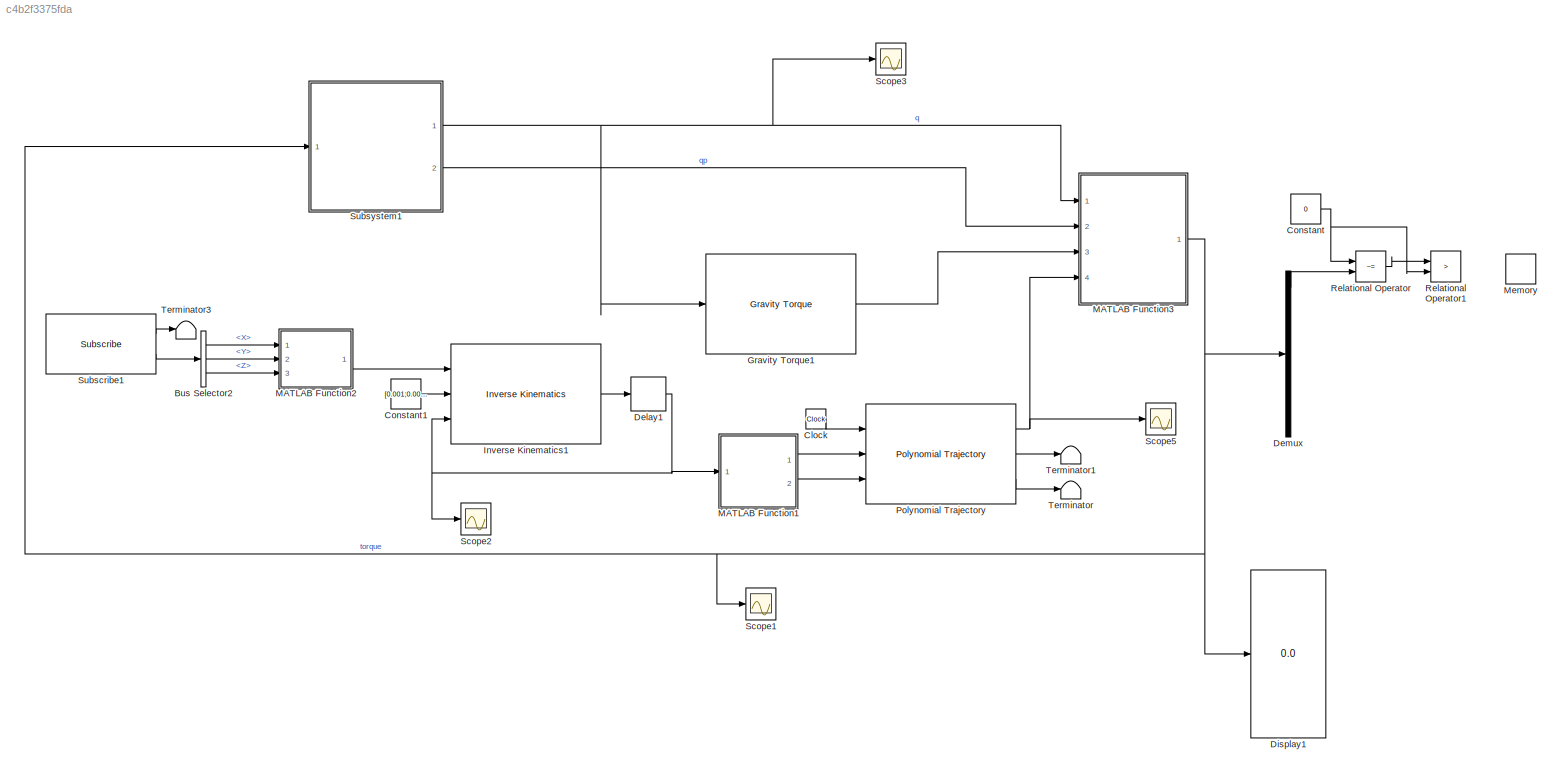
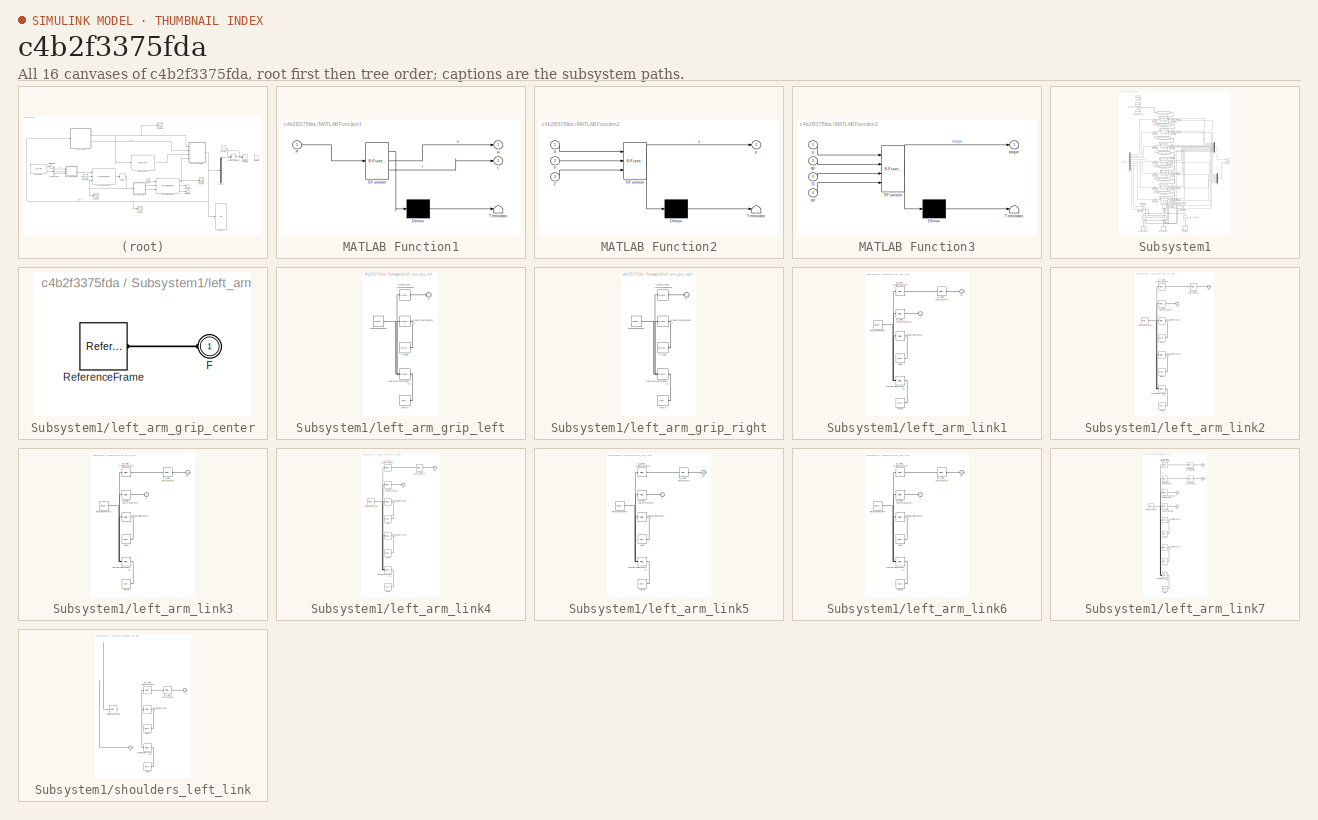
[diagram: thumbnail index - all 16 canvases of the model, root first then tree order]
MODEL slx_c4b2f3375fda
KIND model
CONFIG AbsTol = auto
CONFIG EnableMultiTasking = off
CONFIG FixedStep = auto
CONFIG MaxStep = auto
CONFIG MinStep = auto
CONFIG RelTol = 1e-3
CONFIG SampleTimeConstraint = Unconstrained
CONFIG Solver = VariableStepAuto
CONFIG SolverName = VariableStepAuto
CONFIG StartTime = 0.0
CONFIG StopTime = 10.0
BLOCK [BusSelector] Bus Selector2
  NameLocation = right
  OutputSignals = Point.X,Point.Y,Point.Z
  Ports = [1, 3]
BLOCK [Clock] Clock
BLOCK [Constant] Constant
  Commented = on
  Value = 0
BLOCK [Constant] Constant1
  Value = [0.001;0.001;0.001;0.001;0.001;0.001]
BLOCK [Delay] Delay1
  DelayLength = 1
  InitialCondition = 0
  InputPortMap = u0
  Ports = [1, 1]
BLOCK [Demux] Demux
  Commented = on
  Outputs = 9
  Ports = [1, 9]
BLOCK [Display] Display1
  Decimation = 1
  Ports = [1]
BLOCK [Reference] Gravity Torque1  REF=robotmaniplib/Gravity Torque
  Ports = [1, 1]
  SourceBlock = robotmaniplib/Gravity Torque
  SourceProductBaseCode = RO
  SourceType = Gravity Torque
BLOCK [Reference] Inverse Kinematics1  REF=robotmaniplib/Inverse Kinematics
  Ports = [3, 1]
  SourceBlock = robotmaniplib/Inverse Kinematics
  SourceProductBaseCode = RO
  SourceType = Inverse Kinematics
BLOCK [SubSystem] MATLAB Function1
  ErrorFcn = Stateflow.Translate.translate
  PermitHierarchicalResolution = ExplicitOnly
  Ports = [1, 2]
  RequestExecContextInheritance = off
  SFBlockType = MATLAB Function
  TreatAsAtomicUnit = on
BLOCK [Demux] MATLAB Function1/ Demux 
  Outputs = 1
  Ports = [1, 1]
BLOCK [S-Function] MATLAB Function1/ SFunction 
  EnableBusSupport = on
  FunctionName = sf_sfun
  PortCounts = [1 3]
  Ports = [1, 3]
  SFcnIsStateOwnerBlock = off
  SFunctionDeploymentMode = off
  Tag = Stateflow S-Function 2
BLOCK [Terminator] MATLAB Function1/ Terminator 
BLOCK [Inport] MATLAB Function1/P
BLOCK [Outport] MATLAB Function1/t
  Port = 2
BLOCK [Outport] MATLAB Function1/w
BLOCK [SubSystem] MATLAB Function2
  ErrorFcn = Stateflow.Translate.translate
  PermitHierarchicalResolution = ExplicitOnly
  Ports = [3, 1]
  RequestExecContextInheritance = off
  SFBlockType = MATLAB Function
  TreatAsAtomicUnit = on
BLOCK [Demux] MATLAB Function2/ Demux 
  Outputs = 1
  Ports = [1, 1]
BLOCK [S-Function] MATLAB Function2/ SFunction 
  EnableBusSupport = on
  FunctionName = sf_sfun
  PortCounts = [3 2]
  Ports = [3, 2]
  SFcnIsStateOwnerBlock = off
  SFunctionDeploymentMode = off
  Tag = Stateflow S-Function 1
BLOCK [Terminator] MATLAB Function2/ Terminator 
BLOCK [Inport] MATLAB Function2/X
BLOCK [Inport] MATLAB Function2/Y
  Port = 2
BLOCK [Inport] MATLAB Function2/Z
  Port = 3
BLOCK [Outport] MATLAB Function2/y
BLOCK [SubSystem] MATLAB Function3
  ErrorFcn = Stateflow.Translate.translate
  PermitHierarchicalResolution = ExplicitOnly
  Ports = [4, 1]
  RequestExecContextInheritance = off
  SFBlockType = MATLAB Function
  TreatAsAtomicUnit = on
BLOCK [Demux] MATLAB Function3/ Demux 
  Outputs = 1
  Ports = [1, 1]
BLOCK [S-Function] MATLAB Function3/ SFunction 
  EnableBusSupport = on
  FunctionName = sf_sfun
  PortCounts = [4 2]
  Ports = [4, 2]
  SFcnIsStateOwnerBlock = off
  SFunctionDeploymentMode = off
  Tag = Stateflow S-Function 4
BLOCK [Terminator] MATLAB Function3/ Terminator 
BLOCK [Inport] MATLAB Function3/G
  Port = 3
BLOCK [Inport] MATLAB Function3/q
BLOCK [Inport] MATLAB Function3/qd
  Port = 4
BLOCK [Inport] MATLAB Function3/qp
  Port = 2
BLOCK [Outport] MATLAB Function3/torque
BLOCK [Memory] Memory
  Commented = on
BLOCK [Reference] Polynomial Trajectory  REF=robotcorelib/Polynomial Trajectory
  Ports = [3, 3]
  SourceBlock = robotcorelib/Polynomial Trajectory
  SourceProductBaseCode = NV,RO,RR
  SourceType = robotics.slcore.internal.block.PolyTrajSys
BLOCK [RelationalOperator] Relational Operator
  Commented = on
  InputSameDT = off
  Operator = ~=
  OutDataTypeStr = boolean
  Ports = [2, 1]
  RndMeth = Simplest
BLOCK [RelationalOperator] Relational Operator1
  Commented = on
  InputSameDT = off
  Operator = >
  OutDataTypeStr = boolean
  Ports = [2, 1]
  RndMeth = Simplest
BLOCK [Scope] Scope1
  Floating = off
  NumInputPorts = 1
  Ports = [1]
  ScopeSpecificationString = Simulink.scopes.TimeScopeBlockCfg('CurrentConfiguration', extmgr.ConfigurationSet(extmgr.Configuration('Core','General UI',true),extmgr.Configuration('Core','Source UI',true),extmgr.Configuration('Sources','WiredSimulink',true,'DataLoggingVariableName','ScopeData1'),extmgr.Configuration('Visuals','Time Domain',true,'SerializedDisplays',{struct('MinYLimReal','-3.08849','MaxYLimReal','3.8471','YLabe...<+1522ch>
BLOCK [Scope] Scope2
  Floating = off
  NumInputPorts = 1
  Ports = [1]
  ScopeSpecificationString = Simulink.scopes.TimeScopeBlockCfg('CurrentConfiguration', extmgr.ConfigurationSet(extmgr.Configuration('Core','General UI',true),extmgr.Configuration('Core','Source UI',true),extmgr.Configuration('Sources','WiredSimulink',true,'DataLoggingVariableName','ScopeData2'),extmgr.Configuration('Visuals','Time Domain',true,'SerializedDisplays',{struct('MinYLimReal','-0.80789','MaxYLimReal','0.81575','YLab...<+1509ch>
BLOCK [Scope] Scope3
  Floating = off
  NumInputPorts = 1
  Ports = [1]
  ScopeSpecificationString = Simulink.scopes.TimeScopeBlockCfg('CurrentConfiguration', extmgr.ConfigurationSet(extmgr.Configuration('Core','General UI',true),extmgr.Configuration('Core','Source UI',true),extmgr.Configuration('Sources','WiredSimulink',true,'DataLoggingVariableName','ScopeData3'),extmgr.Configuration('Visuals','Time Domain',true,'SerializedDisplays',{struct('MinYLimReal','-60688748479256684057095274004045645126...<+1924ch>
BLOCK [Scope] Scope5
  Floating = off
  NumInputPorts = 1
  Ports = [1]
  ScopeSpecificationString = Simulink.scopes.TimeScopeBlockCfg('CurrentConfiguration', extmgr.ConfigurationSet(extmgr.Configuration('Core','General UI',true),extmgr.Configuration('Core','Source UI',true),extmgr.Configuration('Sources','WiredSimulink',true),extmgr.Configuration('Visuals','Time Domain',true,'SerializedDisplays',{struct('MinYLimReal','-0.80197','MaxYLimReal','0.88151','YLabelReal','','MinYLimMag','0.00000','MaxY...<+1623ch>
BLOCK [Reference] Subscribe1  REF=robotlib/Subscribe
  Ports = [0, 2]
  SourceBlock = robotlib/Subscribe
  SourceProductBaseCode = RR
  SourceType = ROS Subscribe
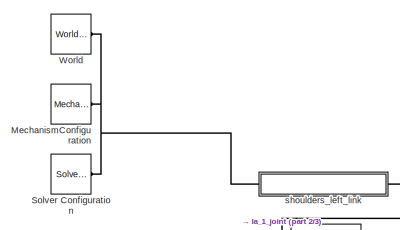
[diagram: Subsystem1 - part 1/3, top left region]
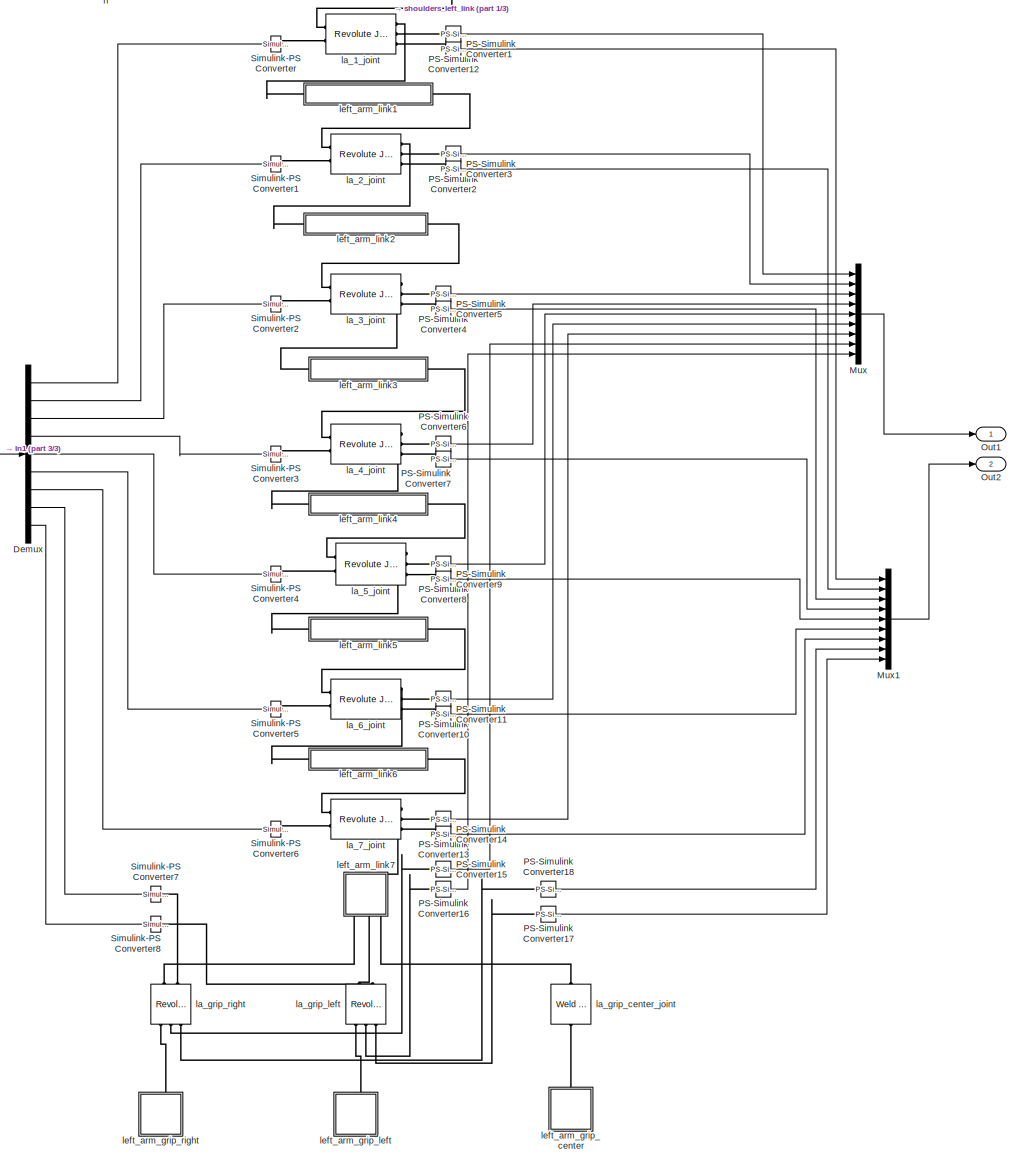
[diagram: Subsystem1 - part 2/3, most of the canvas]
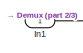
[diagram: Subsystem1 - part 3/3, middle left region]
BLOCK [SubSystem] Subsystem1
  Ports = [1, 2]
  RequestExecContextInheritance = off
BLOCK [Demux] Subsystem1/Demux
  Outputs = 9
  Ports = [1, 9]
BLOCK [Inport] Subsystem1/In1
BLOCK [Reference] Subsystem1/MechanismConfiguration  REF=sm_lib/Utilities/Mechanism
Configuration
  Ports = [0, 0, 0, 0, 0, 0, 1]
  SourceBlock = sm_lib/Utilities/Mechanism\nConfiguration
  SourceProductBaseCode = MS
  SourceType = Mechanism\nConfiguration
BLOCK [Mux] Subsystem1/Mux
  DisplayOption = bar
  Inputs = 9
  Ports = [9, 1]
BLOCK [Mux] Subsystem1/Mux1
  DisplayOption = bar
  Inputs = 9
  Ports = [9, 1]
BLOCK [Outport] Subsystem1/Out1
BLOCK [Outport] Subsystem1/Out2
  Port = 2
BLOCK [Reference] Subsystem1/PS-Simulink Converter1  REF=nesl_utility/PS-Simulink
Converter
  Ports = [0, 1, 0, 0, 0, 1]
  SourceBlock = nesl_utility/PS-Simulink\nConverter
  SourceProductBaseCode = SS
  SourceType = PS-Simulink\nConverter
BLOCK [Reference] Subsystem1/PS-Simulink Converter10  REF=nesl_utility/PS-Simulink
Converter
  Ports = [0, 1, 0, 0, 0, 1]
  SourceBlock = nesl_utility/PS-Simulink\nConverter
  SourceProductBaseCode = SS
  SourceType = PS-Simulink\nConverter
BLOCK [Reference] Subsystem1/PS-Simulink Converter11  REF=nesl_utility/PS-Simulink
Converter
  Ports = [0, 1, 0, 0, 0, 1]
  SourceBlock = nesl_utility/PS-Simulink\nConverter
  SourceProductBaseCode = SS
  SourceType = PS-Simulink\nConverter
BLOCK [Reference] Subsystem1/PS-Simulink Converter12  REF=nesl_utility/PS-Simulink
Converter
  Ports = [0, 1, 0, 0, 0, 1]
  SourceBlock = nesl_utility/PS-Simulink\nConverter
  SourceProductBaseCode = SS
  SourceType = PS-Simulink\nConverter
BLOCK [Reference] Subsystem1/PS-Simulink Converter13  REF=nesl_utility/PS-Simulink
Converter
  Ports = [0, 1, 0, 0, 0, 1]
  SourceBlock = nesl_utility/PS-Simulink\nConverter
  SourceProductBaseCode = SS
  SourceType = PS-Simulink\nConverter
BLOCK [Reference] Subsystem1/PS-Simulink Converter14  REF=nesl_utility/PS-Simulink
Converter
  Ports = [0, 1, 0, 0, 0, 1]
  SourceBlock = nesl_utility/PS-Simulink\nConverter
  SourceProductBaseCode = SS
  SourceType = PS-Simulink\nConverter
BLOCK [Reference] Subsystem1/PS-Simulink Converter15  REF=nesl_utility/PS-Simulink
Converter
  Ports = [0, 1, 0, 0, 0, 1]
  SourceBlock = nesl_utility/PS-Simulink\nConverter
  SourceProductBaseCode = SS
  SourceType = PS-Simulink\nConverter
BLOCK [Reference] Subsystem1/PS-Simulink Converter16  REF=nesl_utility/PS-Simulink
Converter
  Ports = [0, 1, 0, 0, 0, 1]
  SourceBlock = nesl_utility/PS-Simulink\nConverter
  SourceProductBaseCode = SS
  SourceType = PS-Simulink\nConverter
BLOCK [Reference] Subsystem1/PS-Simulink Converter17  REF=nesl_utility/PS-Simulink
Converter
  Ports = [0, 1, 0, 0, 0, 1]
  SourceBlock = nesl_utility/PS-Simulink\nConverter
  SourceProductBaseCode = SS
  SourceType = PS-Simulink\nConverter
BLOCK [Reference] Subsystem1/PS-Simulink Converter18  REF=nesl_utility/PS-Simulink
Converter
  Ports = [0, 1, 0, 0, 0, 1]
  SourceBlock = nesl_utility/PS-Simulink\nConverter
  SourceProductBaseCode = SS
  SourceType = PS-Simulink\nConverter
BLOCK [Reference] Subsystem1/PS-Simulink Converter2  REF=nesl_utility/PS-Simulink
Converter
  Ports = [0, 1, 0, 0, 0, 1]
  SourceBlock = nesl_utility/PS-Simulink\nConverter
  SourceProductBaseCode = SS
  SourceType = PS-Simulink\nConverter
BLOCK [Reference] Subsystem1/PS-Simulink Converter3  REF=nesl_utility/PS-Simulink
Converter
  Ports = [0, 1, 0, 0, 0, 1]
  SourceBlock = nesl_utility/PS-Simulink\nConverter
  SourceProductBaseCode = SS
  SourceType = PS-Simulink\nConverter
BLOCK [Reference] Subsystem1/PS-Simulink Converter4  REF=nesl_utility/PS-Simulink
Converter
  Ports = [0, 1, 0, 0, 0, 1]
  SourceBlock = nesl_utility/PS-Simulink\nConverter
  SourceProductBaseCode = SS
  SourceType = PS-Simulink\nConverter
BLOCK [Reference] Subsystem1/PS-Simulink Converter5  REF=nesl_utility/PS-Simulink
Converter
  Ports = [0, 1, 0, 0, 0, 1]
  SourceBlock = nesl_utility/PS-Simulink\nConverter
  SourceProductBaseCode = SS
  SourceType = PS-Simulink\nConverter
BLOCK [Reference] Subsystem1/PS-Simulink Converter6  REF=nesl_utility/PS-Simulink
Converter
  Ports = [0, 1, 0, 0, 0, 1]
  SourceBlock = nesl_utility/PS-Simulink\nConverter
  SourceProductBaseCode = SS
  SourceType = PS-Simulink\nConverter
BLOCK [Reference] Subsystem1/PS-Simulink Converter7  REF=nesl_utility/PS-Simulink
Converter
  Ports = [0, 1, 0, 0, 0, 1]
  SourceBlock = nesl_utility/PS-Simulink\nConverter
  SourceProductBaseCode = SS
  SourceType = PS-Simulink\nConverter
BLOCK [Reference] Subsystem1/PS-Simulink Converter8  REF=nesl_utility/PS-Simulink
Converter
  Ports = [0, 1, 0, 0, 0, 1]
  SourceBlock = nesl_utility/PS-Simulink\nConverter
  SourceProductBaseCode = SS
  SourceType = PS-Simulink\nConverter
BLOCK [Reference] Subsystem1/PS-Simulink Converter9  REF=nesl_utility/PS-Simulink
Converter
  Ports = [0, 1, 0, 0, 0, 1]
  SourceBlock = nesl_utility/PS-Simulink\nConverter
  SourceProductBaseCode = SS
  SourceType = PS-Simulink\nConverter
BLOCK [Reference] Subsystem1/Simulink-PS Converter  REF=nesl_utility/Simulink-PS
Converter
  Ports = [1, 0, 0, 0, 0, 0, 1]
  SourceBlock = nesl_utility/Simulink-PS\nConverter
  SourceProductBaseCode = SS
  SourceType = Simulink-PS\nConverter
BLOCK [Reference] Subsystem1/Simulink-PS Converter1  REF=nesl_utility/Simulink-PS
Converter
  Ports = [1, 0, 0, 0, 0, 0, 1]
  SourceBlock = nesl_utility/Simulink-PS\nConverter
  SourceProductBaseCode = SS
  SourceType = Simulink-PS\nConverter
BLOCK [Reference] Subsystem1/Simulink-PS Converter2  REF=nesl_utility/Simulink-PS
Converter
  Ports = [1, 0, 0, 0, 0, 0, 1]
  SourceBlock = nesl_utility/Simulink-PS\nConverter
  SourceProductBaseCode = SS
  SourceType = Simulink-PS\nConverter
BLOCK [Reference] Subsystem1/Simulink-PS Converter3  REF=nesl_utility/Simulink-PS
Converter
  Ports = [1, 0, 0, 0, 0, 0, 1]
  SourceBlock = nesl_utility/Simulink-PS\nConverter
  SourceProductBaseCode = SS
  SourceType = Simulink-PS\nConverter
BLOCK [Reference] Subsystem1/Simulink-PS Converter4  REF=nesl_utility/Simulink-PS
Converter
  Ports = [1, 0, 0, 0, 0, 0, 1]
  SourceBlock = nesl_utility/Simulink-PS\nConverter
  SourceProductBaseCode = SS
  SourceType = Simulink-PS\nConverter
BLOCK [Reference] Subsystem1/Simulink-PS Converter5  REF=nesl_utility/Simulink-PS
Converter
  Ports = [1, 0, 0, 0, 0, 0, 1]
  SourceBlock = nesl_utility/Simulink-PS\nConverter
  SourceProductBaseCode = SS
  SourceType = Simulink-PS\nConverter
BLOCK [Reference] Subsystem1/Simulink-PS Converter6  REF=nesl_utility/Simulink-PS
Converter
  Ports = [1, 0, 0, 0, 0, 0, 1]
  SourceBlock = nesl_utility/Simulink-PS\nConverter
  SourceProductBaseCode = SS
  SourceType = Simulink-PS\nConverter
BLOCK [Reference] Subsystem1/Simulink-PS Converter7  REF=nesl_utility/Simulink-PS
Converter
  Ports = [1, 0, 0, 0, 0, 0, 1]
  SourceBlock = nesl_utility/Simulink-PS\nConverter
  SourceProductBaseCode = SS
  SourceType = Simulink-PS\nConverter
BLOCK [Reference] Subsystem1/Simulink-PS Converter8  REF=nesl_utility/Simulink-PS
Converter
  Ports = [1, 0, 0, 0, 0, 0, 1]
  SourceBlock = nesl_utility/Simulink-PS\nConverter
  SourceProductBaseCode = SS
  SourceType = Simulink-PS\nConverter
BLOCK [Reference] Subsystem1/Solver Configuration  REF=nesl_utility/Solver
Configuration
  Ports = [0, 0, 0, 0, 0, 0, 1]
  SourceBlock = nesl_utility/Solver\nConfiguration
  SourceProductBaseCode = SS
  SourceType = Solver\nConfiguration
BLOCK [Reference] Subsystem1/World  REF=sm_lib/Frames and
Transforms/World Frame
  Ports = [0, 0, 0, 0, 0, 0, 1]
  SourceBlock = sm_lib/Frames and\nTransforms/World Frame
  SourceProductBaseCode = MS
  SourceType = World Frame
BLOCK [Reference] Subsystem1/la_1_joint  REF=sm_lib/Joints/Revolute Joint
  Ports = [0, 0, 0, 0, 0, 2, 3]
  SourceBlock = sm_lib/Joints/Revolute Joint
  SourceProductBaseCode = MS
  SourceType = Revolute Joint
BLOCK [Reference] Subsystem1/la_2_joint  REF=sm_lib/Joints/Revolute Joint
  Ports = [0, 0, 0, 0, 0, 2, 3]
  SourceBlock = sm_lib/Joints/Revolute Joint
  SourceProductBaseCode = MS
  SourceType = Revolute Joint
BLOCK [Reference] Subsystem1/la_3_joint  REF=sm_lib/Joints/Revolute Joint
  Ports = [0, 0, 0, 0, 0, 2, 3]
  SourceBlock = sm_lib/Joints/Revolute Joint
  SourceProductBaseCode = MS
  SourceType = Revolute Joint
BLOCK [Reference] Subsystem1/la_4_joint  REF=sm_lib/Joints/Revolute Joint
  Ports = [0, 0, 0, 0, 0, 2, 3]
  SourceBlock = sm_lib/Joints/Revolute Joint
  SourceProductBaseCode = MS
  SourceType = Revolute Joint
BLOCK [Reference] Subsystem1/la_5_joint  REF=sm_lib/Joints/Revolute Joint
  Ports = [0, 0, 0, 0, 0, 2, 3]
  SourceBlock = sm_lib/Joints/Revolute Joint
  SourceProductBaseCode = MS
  SourceType = Revolute Joint
BLOCK [Reference] Subsystem1/la_6_joint  REF=sm_lib/Joints/Revolute Joint
  Ports = [0, 0, 0, 0, 0, 2, 3]
  SourceBlock = sm_lib/Joints/Revolute Joint
  SourceProductBaseCode = MS
  SourceType = Revolute Joint
BLOCK [Reference] Subsystem1/la_7_joint  REF=sm_lib/Joints/Revolute Joint
  Ports = [0, 0, 0, 0, 0, 2, 3]
  SourceBlock = sm_lib/Joints/Revolute Joint
  SourceProductBaseCode = MS
  SourceType = Revolute Joint
BLOCK [Reference] Subsystem1/la_grip_center_joint  REF=sm_lib/Joints/Weld Joint
  NameLocation = left
  Ports = [0, 0, 0, 0, 0, 1, 1]
  SourceBlock = sm_lib/Joints/Weld Joint
  SourceProductBaseCode = MS
  SourceType = Weld Joint
BLOCK [Reference] Subsystem1/la_grip_left  REF=sm_lib/Joints/Revolute Joint
  NameLocation = left
  Ports = [0, 0, 0, 0, 0, 2, 3]
  SourceBlock = sm_lib/Joints/Revolute Joint
  SourceProductBaseCode = MS
  SourceType = Revolute Joint
BLOCK [Reference] Subsystem1/la_grip_right  REF=sm_lib/Joints/Revolute Joint
  NameLocation = left
  Ports = [0, 0, 0, 0, 0, 2, 3]
  SourceBlock = sm_lib/Joints/Revolute Joint
  SourceProductBaseCode = MS
  SourceType = Revolute Joint
BLOCK [SubSystem] Subsystem1/left_arm_grip_center
  NameLocation = left
  Ports = [0, 0, 0, 0, 0, 1]
  RequestExecContextInheritance = off
BLOCK [PMIOPort] Subsystem1/left_arm_grip_center/F
  Side = Left
BLOCK [Reference] Subsystem1/left_arm_grip_center/ReferenceFrame  REF=sm_lib/Frames and
Transforms/Reference
Frame
  Ports = [0, 0, 0, 0, 0, 0, 1]
  SourceBlock = sm_lib/Frames and\nTransforms/Reference\nFrame
  SourceProductBaseCode = MS
  SourceType = Reference\nFrame
BLOCK [SubSystem] Subsystem1/left_arm_grip_left
  NameLocation = left
  Ports = [0, 0, 0, 0, 0, 1]
  RequestExecContextInheritance = off
BLOCK [PMIOPort] Subsystem1/left_arm_grip_left/F
  Side = Left
BLOCK [Reference] Subsystem1/left_arm_grip_left/Inertia  REF=sm_lib/Body Elements/Inertia
  Ports = [0, 0, 0, 0, 0, 0, 1]
  SourceBlock = sm_lib/Body Elements/Inertia
  SourceProductBaseCode = MS
  SourceType = Inertia
BLOCK [Reference] Subsystem1/left_arm_grip_left/InertiaOriginTransform  REF=sm_lib/Frames and
Transforms/Rigid
Transform
  Ports = [0, 0, 0, 0, 0, 1, 1]
  SourceBlock = sm_lib/Frames and\nTransforms/Rigid\nTransform
  SourceProductBaseCode = MS
  SourceType = Rigid\nTransform
BLOCK [Reference] Subsystem1/left_arm_grip_left/ReferenceFrame  REF=sm_lib/Frames and
Transforms/Reference
Frame
  Ports = [0, 0, 0, 0, 0, 0, 1]
  SourceBlock = sm_lib/Frames and\nTransforms/Reference\nFrame
  SourceProductBaseCode = MS
  SourceType = Reference\nFrame
BLOCK [Reference] Subsystem1/left_arm_grip_left/Visual  REF=sm_lib/Body Elements/Brick Solid
  Ports = [0, 0, 0, 0, 0, 0, 1]
  SourceBlock = sm_lib/Body Elements/Brick Solid
  SourceProductBaseCode = MS
  SourceType = Brick Solid
BLOCK [Reference] Subsystem1/left_arm_grip_left/VisualOriginTransform  REF=sm_lib/Frames and
Transforms/Rigid
Transform
  Ports = [0, 0, 0, 0, 0, 1, 1]
  SourceBlock = sm_lib/Frames and\nTransforms/Rigid\nTransform
  SourceProductBaseCode = MS
  SourceType = Rigid\nTransform
BLOCK [Reference] Subsystem1/left_arm_grip_left/la_grip_left_AxisInvTransform  REF=sm_lib/Frames and
Transforms/Rigid
Transform
  Ports = [0, 0, 0, 0, 0, 1, 1]
  SourceBlock = sm_lib/Frames and\nTransforms/Rigid\nTransform
  SourceProductBaseCode = MS
  SourceType = Rigid\nTransform
BLOCK [SubSystem] Subsystem1/left_arm_grip_right
  NameLocation = left
  Ports = [0, 0, 0, 0, 0, 1]
  RequestExecContextInheritance = off
BLOCK [PMIOPort] Subsystem1/left_arm_grip_right/F
  Side = Left
BLOCK [Reference] Subsystem1/left_arm_grip_right/Inertia  REF=sm_lib/Body Elements/Inertia
  Ports = [0, 0, 0, 0, 0, 0, 1]
  SourceBlock = sm_lib/Body Elements/Inertia
  SourceProductBaseCode = MS
  SourceType = Inertia
BLOCK [Reference] Subsystem1/left_arm_grip_right/InertiaOriginTransform  REF=sm_lib/Frames and
Transforms/Rigid
Transform
  Ports = [0, 0, 0, 0, 0, 1, 1]
  SourceBlock = sm_lib/Frames and\nTransforms/Rigid\nTransform
  SourceProductBaseCode = MS
  SourceType = Rigid\nTransform
BLOCK [Reference] Subsystem1/left_arm_grip_right/ReferenceFrame  REF=sm_lib/Frames and
Transforms/Reference
Frame
  Ports = [0, 0, 0, 0, 0, 0, 1]
  SourceBlock = sm_lib/Frames and\nTransforms/Reference\nFrame
  SourceProductBaseCode = MS
  SourceType = Reference\nFrame
BLOCK [Reference] Subsystem1/left_arm_grip_right/Visual  REF=sm_lib/Body Elements/Brick Solid
  Ports = [0, 0, 0, 0, 0, 0, 1]
  SourceBlock = sm_lib/Body Elements/Brick Solid
  SourceProductBaseCode = MS
  SourceType = Brick Solid
BLOCK [Reference] Subsystem1/left_arm_grip_right/VisualOriginTransform  REF=sm_lib/Frames and
Transforms/Rigid
Transform
  Ports = [0, 0, 0, 0, 0, 1, 1]
  SourceBlock = sm_lib/Frames and\nTransforms/Rigid\nTransform
  SourceProductBaseCode = MS
  SourceType = Rigid\nTransform
BLOCK [Reference] Subsystem1/left_arm_grip_right/la_grip_right_AxisInvTransform  REF=sm_lib/Frames and
Transforms/Rigid
Transform
  Ports = [0, 0, 0, 0, 0, 1, 1]
  SourceBlock = sm_lib/Frames and\nTransforms/Rigid\nTransform
  SourceProductBaseCode = MS
  SourceType = Rigid\nTransform
BLOCK [SubSystem] Subsystem1/left_arm_link1
  Ports = [0, 0, 0, 0, 0, 1, 1]
  RequestExecContextInheritance = off
BLOCK [PMIOPort] Subsystem1/left_arm_link1/F
  Side = Left
BLOCK [PMIOPort] Subsystem1/left_arm_link1/F1
  Port = 2
  Side = Right
BLOCK [Reference] Subsystem1/left_arm_link1/Inertia  REF=sm_lib/Body Elements/Inertia
  Ports = [0, 0, 0, 0, 0, 0, 1]
  SourceBlock = sm_lib/Body Elements/Inertia
  SourceProductBaseCode = MS
  SourceType = Inertia
BLOCK [Reference] Subsystem1/left_arm_link1/InertiaOriginTransform  REF=sm_lib/Frames and
Transforms/Rigid
Transform
  Ports = [0, 0, 0, 0, 0, 1, 1]
  SourceBlock = sm_lib/Frames and\nTransforms/Rigid\nTransform
  SourceProductBaseCode = MS
  SourceType = Rigid\nTransform
BLOCK [Reference] Subsystem1/left_arm_link1/ReferenceFrame  REF=sm_lib/Frames and
Transforms/Reference
Frame
  Ports = [0, 0, 0, 0, 0, 0, 1]
  SourceBlock = sm_lib/Frames and\nTransforms/Reference\nFrame
  SourceProductBaseCode = MS
  SourceType = Reference\nFrame
BLOCK [Reference] Subsystem1/left_arm_link1/Visual  REF=sm_lib/Body Elements/Brick Solid
  Ports = [0, 0, 0, 0, 0, 0, 1]
  SourceBlock = sm_lib/Body Elements/Brick Solid
  SourceProductBaseCode = MS
  SourceType = Brick Solid
BLOCK [Reference] Subsystem1/left_arm_link1/VisualOriginTransform  REF=sm_lib/Frames and
Transforms/Rigid
Transform
  Ports = [0, 0, 0, 0, 0, 1, 1]
  SourceBlock = sm_lib/Frames and\nTransforms/Rigid\nTransform
  SourceProductBaseCode = MS
  SourceType = Rigid\nTransform
BLOCK [Reference] Subsystem1/left_arm_link1/la_1_joint_AxisInvTransform  REF=sm_lib/Frames and
Transforms/Rigid
Transform
  Ports = [0, 0, 0, 0, 0, 1, 1]
  SourceBlock = sm_lib/Frames and\nTransforms/Rigid\nTransform
  SourceProductBaseCode = MS
  SourceType = Rigid\nTransform
BLOCK [Reference] Subsystem1/left_arm_link1/la_2_joint_AxisTransform  REF=sm_lib/Frames and
Transforms/Rigid
Transform
  Ports = [0, 0, 0, 0, 0, 1, 1]
  SourceBlock = sm_lib/Frames and\nTransforms/Rigid\nTransform
  SourceProductBaseCode = MS
  SourceType = Rigid\nTransform
BLOCK [Reference] Subsystem1/left_arm_link1/la_2_joint_OriginTransform  REF=sm_lib/Frames and
Transforms/Rigid
Transform
  Ports = [0, 0, 0, 0, 0, 1, 1]
  SourceBlock = sm_lib/Frames and\nTransforms/Rigid\nTransform
  SourceProductBaseCode = MS
  SourceType = Rigid\nTransform
BLOCK [SubSystem] Subsystem1/left_arm_link2
  Ports = [0, 0, 0, 0, 0, 1, 1]
  RequestExecContextInheritance = off
BLOCK [PMIOPort] Subsystem1/left_arm_link2/F
  Side = Left
BLOCK [PMIOPort] Subsystem1/left_arm_link2/F1
  Port = 2
  Side = Right
BLOCK [Reference] Subsystem1/left_arm_link2/Inertia  REF=sm_lib/Body Elements/Inertia
  Ports = [0, 0, 0, 0, 0, 0, 1]
  SourceBlock = sm_lib/Body Elements/Inertia
  SourceProductBaseCode = MS
  SourceType = Inertia
BLOCK [Reference] Subsystem1/left_arm_link2/InertiaOriginTransform  REF=sm_lib/Frames and
Transforms/Rigid
Transform
  Ports = [0, 0, 0, 0, 0, 1, 1]
  SourceBlock = sm_lib/Frames and\nTransforms/Rigid\nTransform
  SourceProductBaseCode = MS
  SourceType = Rigid\nTransform
BLOCK [Reference] Subsystem1/left_arm_link2/ReferenceFrame  REF=sm_lib/Frames and
Transforms/Reference
Frame
  Ports = [0, 0, 0, 0, 0, 0, 1]
  SourceBlock = sm_lib/Frames and\nTransforms/Reference\nFrame
  SourceProductBaseCode = MS
  SourceType = Reference\nFrame
BLOCK [Reference] Subsystem1/left_arm_link2/Visual  REF=sm_lib/Body Elements/Brick Solid
  Ports = [0, 0, 0, 0, 0, 0, 1]
  SourceBlock = sm_lib/Body Elements/Brick Solid
  SourceProductBaseCode = MS
  SourceType = Brick Solid
BLOCK [Reference] Subsystem1/left_arm_link2/Visual1  REF=sm_lib/Body Elements/Brick Solid
  Ports = [0, 0, 0, 0, 0, 0, 1]
  SourceBlock = sm_lib/Body Elements/Brick Solid
  SourceProductBaseCode = MS
  SourceType = Brick Solid
BLOCK [Reference] Subsystem1/left_arm_link2/VisualOrigin1Transform  REF=sm_lib/Frames and
Transforms/Rigid
Transform
  Ports = [0, 0, 0, 0, 0, 1, 1]
  SourceBlock = sm_lib/Frames and\nTransforms/Rigid\nTransform
  SourceProductBaseCode = MS
  SourceType = Rigid\nTransform
BLOCK [Reference] Subsystem1/left_arm_link2/VisualOriginTransform  REF=sm_lib/Frames and
Transforms/Rigid
Transform
  Ports = [0, 0, 0, 0, 0, 1, 1]
  SourceBlock = sm_lib/Frames and\nTransforms/Rigid\nTransform
  SourceProductBaseCode = MS
  SourceType = Rigid\nTransform
BLOCK [Reference] Subsystem1/left_arm_link2/la_2_joint_AxisInvTransform  REF=sm_lib/Frames and
Transforms/Rigid
Transform
  Ports = [0, 0, 0, 0, 0, 1, 1]
  SourceBlock = sm_lib/Frames and\nTransforms/Rigid\nTransform
  SourceProductBaseCode = MS
  SourceType = Rigid\nTransform
BLOCK [Reference] Subsystem1/left_arm_link2/la_3_joint_AxisTransform  REF=sm_lib/Frames and
Transforms/Rigid
Transform
  Ports = [0, 0, 0, 0, 0, 1, 1]
  SourceBlock = sm_lib/Frames and\nTransforms/Rigid\nTransform
  SourceProductBaseCode = MS
  SourceType = Rigid\nTransform
BLOCK [Reference] Subsystem1/left_arm_link2/la_3_joint_OriginTransform  REF=sm_lib/Frames and
Transforms/Rigid
Transform
  Ports = [0, 0, 0, 0, 0, 1, 1]
  SourceBlock = sm_lib/Frames and\nTransforms/Rigid\nTransform
  SourceProductBaseCode = MS
  SourceType = Rigid\nTransform
BLOCK [SubSystem] Subsystem1/left_arm_link3
  Ports = [0, 0, 0, 0, 0, 1, 1]
  RequestExecContextInheritance = off
BLOCK [PMIOPort] Subsystem1/left_arm_link3/F
  Side = Left
BLOCK [PMIOPort] Subsystem1/left_arm_link3/F1
  Port = 2
  Side = Right
BLOCK [Reference] Subsystem1/left_arm_link3/Inertia  REF=sm_lib/Body Elements/Inertia
  Ports = [0, 0, 0, 0, 0, 0, 1]
  SourceBlock = sm_lib/Body Elements/Inertia
  SourceProductBaseCode = MS
  SourceType = Inertia
BLOCK [Reference] Subsystem1/left_arm_link3/InertiaOriginTransform  REF=sm_lib/Frames and
Transforms/Rigid
Transform
  Ports = [0, 0, 0, 0, 0, 1, 1]
  SourceBlock = sm_lib/Frames and\nTransforms/Rigid\nTransform
  SourceProductBaseCode = MS
  SourceType = Rigid\nTransform
BLOCK [Reference] Subsystem1/left_arm_link3/ReferenceFrame  REF=sm_lib/Frames and
Transforms/Reference
Frame
  Ports = [0, 0, 0, 0, 0, 0, 1]
  SourceBlock = sm_lib/Frames and\nTransforms/Reference\nFrame
  SourceProductBaseCode = MS
  SourceType = Reference\nFrame
BLOCK [Reference] Subsystem1/left_arm_link3/Visual  REF=sm_lib/Body Elements/Brick Solid
  Ports = [0, 0, 0, 0, 0, 0, 1]
  SourceBlock = sm_lib/Body Elements/Brick Solid
  SourceProductBaseCode = MS
  SourceType = Brick Solid
BLOCK [Reference] Subsystem1/left_arm_link3/VisualOriginTransform  REF=sm_lib/Frames and
Transforms/Rigid
Transform
  Ports = [0, 0, 0, 0, 0, 1, 1]
  SourceBlock = sm_lib/Frames and\nTransforms/Rigid\nTransform
  SourceProductBaseCode = MS
  SourceType = Rigid\nTransform
BLOCK [Reference] Subsystem1/left_arm_link3/la_3_joint_AxisInvTransform  REF=sm_lib/Frames and
Transforms/Rigid
Transform
  Ports = [0, 0, 0, 0, 0, 1, 1]
  SourceBlock = sm_lib/Frames and\nTransforms/Rigid\nTransform
  SourceProductBaseCode = MS
  SourceType = Rigid\nTransform
BLOCK [Reference] Subsystem1/left_arm_link3/la_4_joint_AxisTransform  REF=sm_lib/Frames and
Transforms/Rigid
Transform
  Ports = [0, 0, 0, 0, 0, 1, 1]
  SourceBlock = sm_lib/Frames and\nTransforms/Rigid\nTransform
  SourceProductBaseCode = MS
  SourceType = Rigid\nTransform
BLOCK [Reference] Subsystem1/left_arm_link3/la_4_joint_OriginTransform  REF=sm_lib/Frames and
Transforms/Rigid
Transform
  Ports = [0, 0, 0, 0, 0, 1, 1]
  SourceBlock = sm_lib/Frames and\nTransforms/Rigid\nTransform
  SourceProductBaseCode = MS
  SourceType = Rigid\nTransform
BLOCK [SubSystem] Subsystem1/left_arm_link4
  Ports = [0, 0, 0, 0, 0, 1, 1]
  RequestExecContextInheritance = off
BLOCK [PMIOPort] Subsystem1/left_arm_link4/F
  Side = Left
BLOCK [PMIOPort] Subsystem1/left_arm_link4/F1
  Port = 2
  Side = Right
BLOCK [Reference] Subsystem1/left_arm_link4/Inertia  REF=sm_lib/Body Elements/Inertia
  Ports = [0, 0, 0, 0, 0, 0, 1]
  SourceBlock = sm_lib/Body Elements/Inertia
  SourceProductBaseCode = MS
  SourceType = Inertia
BLOCK [Reference] Subsystem1/left_arm_link4/InertiaOriginTransform  REF=sm_lib/Frames and
Transforms/Rigid
Transform
  Ports = [0, 0, 0, 0, 0, 1, 1]
  SourceBlock = sm_lib/Frames and\nTransforms/Rigid\nTransform
  SourceProductBaseCode = MS
  SourceType = Rigid\nTransform
BLOCK [Reference] Subsystem1/left_arm_link4/ReferenceFrame  REF=sm_lib/Frames and
Transforms/Reference
Frame
  Ports = [0, 0, 0, 0, 0, 0, 1]
  SourceBlock = sm_lib/Frames and\nTransforms/Reference\nFrame
  SourceProductBaseCode = MS
  SourceType = Reference\nFrame
BLOCK [Reference] Subsystem1/left_arm_link4/Visual  REF=sm_lib/Body Elements/Brick Solid
  Ports = [0, 0, 0, 0, 0, 0, 1]
  SourceBlock = sm_lib/Body Elements/Brick Solid
  SourceProductBaseCode = MS
  SourceType = Brick Solid
BLOCK [Reference] Subsystem1/left_arm_link4/Visual1  REF=sm_lib/Body Elements/Brick Solid
  Ports = [0, 0, 0, 0, 0, 0, 1]
  SourceBlock = sm_lib/Body Elements/Brick Solid
  SourceProductBaseCode = MS
  SourceType = Brick Solid
BLOCK [Reference] Subsystem1/left_arm_link4/VisualOrigin1Transform  REF=sm_lib/Frames and
Transforms/Rigid
Transform
  Ports = [0, 0, 0, 0, 0, 1, 1]
  SourceBlock = sm_lib/Frames and\nTransforms/Rigid\nTransform
  SourceProductBaseCode = MS
  SourceType = Rigid\nTransform
BLOCK [Reference] Subsystem1/left_arm_link4/VisualOriginTransform  REF=sm_lib/Frames and
Transforms/Rigid
Transform
  Ports = [0, 0, 0, 0, 0, 1, 1]
  SourceBlock = sm_lib/Frames and\nTransforms/Rigid\nTransform
  SourceProductBaseCode = MS
  SourceType = Rigid\nTransform
BLOCK [Reference] Subsystem1/left_arm_link4/la_4_joint_AxisInvTransform  REF=sm_lib/Frames and
Transforms/Rigid
Transform
  Ports = [0, 0, 0, 0, 0, 1, 1]
  SourceBlock = sm_lib/Frames and\nTransforms/Rigid\nTransform
  SourceProductBaseCode = MS
  SourceType = Rigid\nTransform
BLOCK [Reference] Subsystem1/left_arm_link4/la_5_joint_AxisTransform  REF=sm_lib/Frames and
Transforms/Rigid
Transform
  Ports = [0, 0, 0, 0, 0, 1, 1]
  SourceBlock = sm_lib/Frames and\nTransforms/Rigid\nTransform
  SourceProductBaseCode = MS
  SourceType = Rigid\nTransform
BLOCK [Reference] Subsystem1/left_arm_link4/la_5_joint_OriginTransform  REF=sm_lib/Frames and
Transforms/Rigid
Transform
  Ports = [0, 0, 0, 0, 0, 1, 1]
  SourceBlock = sm_lib/Frames and\nTransforms/Rigid\nTransform
  SourceProductBaseCode = MS
  SourceType = Rigid\nTransform
BLOCK [SubSystem] Subsystem1/left_arm_link5
  Ports = [0, 0, 0, 0, 0, 1, 1]
  RequestExecContextInheritance = off
BLOCK [PMIOPort] Subsystem1/left_arm_link5/F
  Side = Left
BLOCK [PMIOPort] Subsystem1/left_arm_link5/F1
  Port = 2
  Side = Right
BLOCK [Reference] Subsystem1/left_arm_link5/Inertia  REF=sm_lib/Body Elements/Inertia
  Ports = [0, 0, 0, 0, 0, 0, 1]
  SourceBlock = sm_lib/Body Elements/Inertia
  SourceProductBaseCode = MS
  SourceType = Inertia
BLOCK [Reference] Subsystem1/left_arm_link5/InertiaOriginTransform  REF=sm_lib/Frames and
Transforms/Rigid
Transform
  Ports = [0, 0, 0, 0, 0, 1, 1]
  SourceBlock = sm_lib/Frames and\nTransforms/Rigid\nTransform
  SourceProductBaseCode = MS
  SourceType = Rigid\nTransform
BLOCK [Reference] Subsystem1/left_arm_link5/ReferenceFrame  REF=sm_lib/Frames and
Transforms/Reference
Frame
  Ports = [0, 0, 0, 0, 0, 0, 1]
  SourceBlock = sm_lib/Frames and\nTransforms/Reference\nFrame
  SourceProductBaseCode = MS
  SourceType = Reference\nFrame
BLOCK [Reference] Subsystem1/left_arm_link5/Visual  REF=sm_lib/Body Elements/Brick Solid
  Ports = [0, 0, 0, 0, 0, 0, 1]
  SourceBlock = sm_lib/Body Elements/Brick Solid
  SourceProductBaseCode = MS
  SourceType = Brick Solid
BLOCK [Reference] Subsystem1/left_arm_link5/VisualOriginTransform  REF=sm_lib/Frames and
Transforms/Rigid
Transform
  Ports = [0, 0, 0, 0, 0, 1, 1]
  SourceBlock = sm_lib/Frames and\nTransforms/Rigid\nTransform
  SourceProductBaseCode = MS
  SourceType = Rigid\nTransform
BLOCK [Reference] Subsystem1/left_arm_link5/la_5_joint_AxisInvTransform  REF=sm_lib/Frames and
Transforms/Rigid
Transform
  Ports = [0, 0, 0, 0, 0, 1, 1]
  SourceBlock = sm_lib/Frames and\nTransforms/Rigid\nTransform
  SourceProductBaseCode = MS
  SourceType = Rigid\nTransform
BLOCK [Reference] Subsystem1/left_arm_link5/la_6_joint_AxisTransform  REF=sm_lib/Frames and
Transforms/Rigid
Transform
  Ports = [0, 0, 0, 0, 0, 1, 1]
  SourceBlock = sm_lib/Frames and\nTransforms/Rigid\nTransform
  SourceProductBaseCode = MS
  SourceType = Rigid\nTransform
BLOCK [Reference] Subsystem1/left_arm_link5/la_6_joint_OriginTransform  REF=sm_lib/Frames and
Transforms/Rigid
Transform
  Ports = [0, 0, 0, 0, 0, 1, 1]
  SourceBlock = sm_lib/Frames and\nTransforms/Rigid\nTransform
  SourceProductBaseCode = MS
  SourceType = Rigid\nTransform
BLOCK [SubSystem] Subsystem1/left_arm_link6
  Ports = [0, 0, 0, 0, 0, 1, 1]
  RequestExecContextInheritance = off
BLOCK [PMIOPort] Subsystem1/left_arm_link6/F
  Side = Left
BLOCK [PMIOPort] Subsystem1/left_arm_link6/F1
  Port = 2
  Side = Right
BLOCK [Reference] Subsystem1/left_arm_link6/Inertia  REF=sm_lib/Body Elements/Inertia
  Ports = [0, 0, 0, 0, 0, 0, 1]
  SourceBlock = sm_lib/Body Elements/Inertia
  SourceProductBaseCode = MS
  SourceType = Inertia
BLOCK [Reference] Subsystem1/left_arm_link6/InertiaOriginTransform  REF=sm_lib/Frames and
Transforms/Rigid
Transform
  Ports = [0, 0, 0, 0, 0, 1, 1]
  SourceBlock = sm_lib/Frames and\nTransforms/Rigid\nTransform
  SourceProductBaseCode = MS
  SourceType = Rigid\nTransform
BLOCK [Reference] Subsystem1/left_arm_link6/ReferenceFrame  REF=sm_lib/Frames and
Transforms/Reference
Frame
  Ports = [0, 0, 0, 0, 0, 0, 1]
  SourceBlock = sm_lib/Frames and\nTransforms/Reference\nFrame
  SourceProductBaseCode = MS
  SourceType = Reference\nFrame
BLOCK [Reference] Subsystem1/left_arm_link6/Visual  REF=sm_lib/Body Elements/Brick Solid
  Ports = [0, 0, 0, 0, 0, 0, 1]
  SourceBlock = sm_lib/Body Elements/Brick Solid
  SourceProductBaseCode = MS
  SourceType = Brick Solid
BLOCK [Reference] Subsystem1/left_arm_link6/VisualOriginTransform  REF=sm_lib/Frames and
Transforms/Rigid
Transform
  Ports = [0, 0, 0, 0, 0, 1, 1]
  SourceBlock = sm_lib/Frames and\nTransforms/Rigid\nTransform
  SourceProductBaseCode = MS
  SourceType = Rigid\nTransform
BLOCK [Reference] Subsystem1/left_arm_link6/la_6_joint_AxisInvTransform  REF=sm_lib/Frames and
Transforms/Rigid
Transform
  Ports = [0, 0, 0, 0, 0, 1, 1]
  SourceBlock = sm_lib/Frames and\nTransforms/Rigid\nTransform
  SourceProductBaseCode = MS
  SourceType = Rigid\nTransform
BLOCK [Reference] Subsystem1/left_arm_link6/la_7_joint_AxisTransform  REF=sm_lib/Frames and
Transforms/Rigid
Transform
  Ports = [0, 0, 0, 0, 0, 1, 1]
  SourceBlock = sm_lib/Frames and\nTransforms/Rigid\nTransform
  SourceProductBaseCode = MS
  SourceType = Rigid\nTransform
BLOCK [Reference] Subsystem1/left_arm_link6/la_7_joint_OriginTransform  REF=sm_lib/Frames and
Transforms/Rigid
Transform
  Ports = [0, 0, 0, 0, 0, 1, 1]
  SourceBlock = sm_lib/Frames and\nTransforms/Rigid\nTransform
  SourceProductBaseCode = MS
  SourceType = Rigid\nTransform
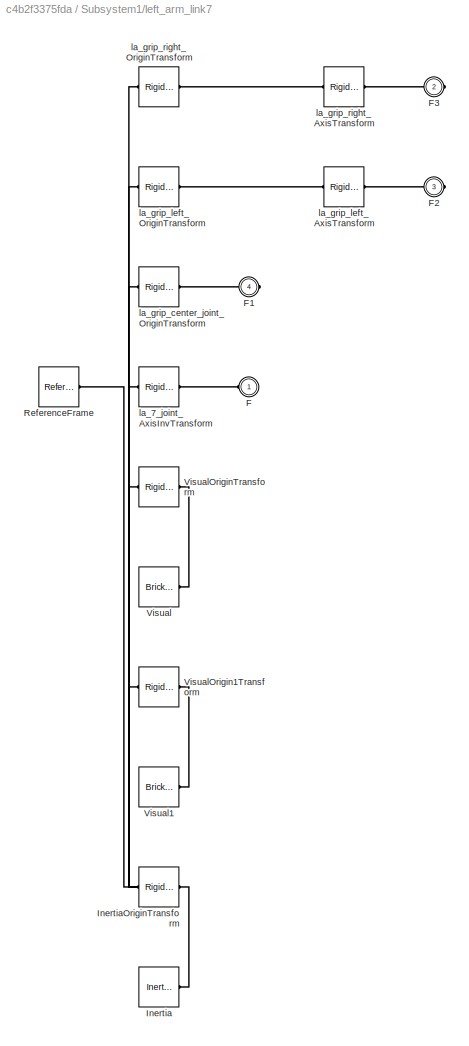
BLOCK [SubSystem] Subsystem1/left_arm_link7
  NameLocation = left
  Ports = [0, 0, 0, 0, 0, 1, 3]
  RequestExecContextInheritance = off
BLOCK [PMIOPort] Subsystem1/left_arm_link7/F
  Side = Left
BLOCK [PMIOPort] Subsystem1/left_arm_link7/F1
  Port = 4
  Side = Right
BLOCK [PMIOPort] Subsystem1/left_arm_link7/F2
  Port = 3
  Side = Right
BLOCK [PMIOPort] Subsystem1/left_arm_link7/F3
  Port = 2
  Side = Right
BLOCK [Reference] Subsystem1/left_arm_link7/Inertia  REF=sm_lib/Body Elements/Inertia
  Ports = [0, 0, 0, 0, 0, 0, 1]
  SourceBlock = sm_lib/Body Elements/Inertia
  SourceProductBaseCode = MS
  SourceType = Inertia
BLOCK [Reference] Subsystem1/left_arm_link7/InertiaOriginTransform  REF=sm_lib/Frames and
Transforms/Rigid
Transform
  Ports = [0, 0, 0, 0, 0, 1, 1]
  SourceBlock = sm_lib/Frames and\nTransforms/Rigid\nTransform
  SourceProductBaseCode = MS
  SourceType = Rigid\nTransform
BLOCK [Reference] Subsystem1/left_arm_link7/ReferenceFrame  REF=sm_lib/Frames and
Transforms/Reference
Frame
  Ports = [0, 0, 0, 0, 0, 0, 1]
  SourceBlock = sm_lib/Frames and\nTransforms/Reference\nFrame
  SourceProductBaseCode = MS
  SourceType = Reference\nFrame
BLOCK [Reference] Subsystem1/left_arm_link7/Visual  REF=sm_lib/Body Elements/Brick Solid
  Ports = [0, 0, 0, 0, 0, 0, 1]
  SourceBlock = sm_lib/Body Elements/Brick Solid
  SourceProductBaseCode = MS
  SourceType = Brick Solid
BLOCK [Reference] Subsystem1/left_arm_link7/Visual1  REF=sm_lib/Body Elements/Brick Solid
  Ports = [0, 0, 0, 0, 0, 0, 1]
  SourceBlock = sm_lib/Body Elements/Brick Solid
  SourceProductBaseCode = MS
  SourceType = Brick Solid
BLOCK [Reference] Subsystem1/left_arm_link7/VisualOrigin1Transform  REF=sm_lib/Frames and
Transforms/Rigid
Transform
  Ports = [0, 0, 0, 0, 0, 1, 1]
  SourceBlock = sm_lib/Frames and\nTransforms/Rigid\nTransform
  SourceProductBaseCode = MS
  SourceType = Rigid\nTransform
BLOCK [Reference] Subsystem1/left_arm_link7/VisualOriginTransform  REF=sm_lib/Frames and
Transforms/Rigid
Transform
  Ports = [0, 0, 0, 0, 0, 1, 1]
  SourceBlock = sm_lib/Frames and\nTransforms/Rigid\nTransform
  SourceProductBaseCode = MS
  SourceType = Rigid\nTransform
BLOCK [Reference] Subsystem1/left_arm_link7/la_7_joint_AxisInvTransform  REF=sm_lib/Frames and
Transforms/Rigid
Transform
  Ports = [0, 0, 0, 0, 0, 1, 1]
  SourceBlock = sm_lib/Frames and\nTransforms/Rigid\nTransform
  SourceProductBaseCode = MS
  SourceType = Rigid\nTransform
BLOCK [Reference] Subsystem1/left_arm_link7/la_grip_center_joint_OriginTransform  REF=sm_lib/Frames and
Transforms/Rigid
Transform
  Ports = [0, 0, 0, 0, 0, 1, 1]
  SourceBlock = sm_lib/Frames and\nTransforms/Rigid\nTransform
  SourceProductBaseCode = MS
  SourceType = Rigid\nTransform
BLOCK [Reference] Subsystem1/left_arm_link7/la_grip_left_AxisTransform  REF=sm_lib/Frames and
Transforms/Rigid
Transform
  Ports = [0, 0, 0, 0, 0, 1, 1]
  SourceBlock = sm_lib/Frames and\nTransforms/Rigid\nTransform
  SourceProductBaseCode = MS
  SourceType = Rigid\nTransform
BLOCK [Reference] Subsystem1/left_arm_link7/la_grip_left_OriginTransform  REF=sm_lib/Frames and
Transforms/Rigid
Transform
  Ports = [0, 0, 0, 0, 0, 1, 1]
  SourceBlock = sm_lib/Frames and\nTransforms/Rigid\nTransform
  SourceProductBaseCode = MS
  SourceType = Rigid\nTransform
BLOCK [Reference] Subsystem1/left_arm_link7/la_grip_right_AxisTransform  REF=sm_lib/Frames and
Transforms/Rigid
Transform
  Ports = [0, 0, 0, 0, 0, 1, 1]
  SourceBlock = sm_lib/Frames and\nTransforms/Rigid\nTransform
  SourceProductBaseCode = MS
  SourceType = Rigid\nTransform
BLOCK [Reference] Subsystem1/left_arm_link7/la_grip_right_OriginTransform  REF=sm_lib/Frames and
Transforms/Rigid
Transform
  Ports = [0, 0, 0, 0, 0, 1, 1]
  SourceBlock = sm_lib/Frames and\nTransforms/Rigid\nTransform
  SourceProductBaseCode = MS
  SourceType = Rigid\nTransform
BLOCK [SubSystem] Subsystem1/shoulders_left_link
  Ports = [0, 0, 0, 0, 0, 1, 1]
  RequestExecContextInheritance = off
BLOCK [PMIOPort] Subsystem1/shoulders_left_link/F
  Side = Left
BLOCK [PMIOPort] Subsystem1/shoulders_left_link/F1
  Port = 2
  Side = Right
BLOCK [Reference] Subsystem1/shoulders_left_link/Inertia  REF=sm_lib/Body Elements/Inertia
  Ports = [0, 0, 0, 0, 0, 0, 1]
  SourceBlock = sm_lib/Body Elements/Inertia
  SourceProductBaseCode = MS
  SourceType = Inertia
BLOCK [Reference] Subsystem1/shoulders_left_link/InertiaOriginTransform  REF=sm_lib/Frames and
Transforms/Rigid
Transform
  Ports = [0, 0, 0, 0, 0, 1, 1]
  SourceBlock = sm_lib/Frames and\nTransforms/Rigid\nTransform
  SourceProductBaseCode = MS
  SourceType = Rigid\nTransform
BLOCK [Reference] Subsystem1/shoulders_left_link/ReferenceFrame  REF=sm_lib/Frames and
Transforms/Reference
Frame
  Ports = [0, 0, 0, 0, 0, 0, 1]
  SourceBlock = sm_lib/Frames and\nTransforms/Reference\nFrame
  SourceProductBaseCode = MS
  SourceType = Reference\nFrame
BLOCK [Reference] Subsystem1/shoulders_left_link/Visual  REF=sm_lib/Body Elements/Brick Solid
  Ports = [0, 0, 0, 0, 0, 0, 1]
  SourceBlock = sm_lib/Body Elements/Brick Solid
  SourceProductBaseCode = MS
  SourceType = Brick Solid
BLOCK [Reference] Subsystem1/shoulders_left_link/VisualOriginTransform  REF=sm_lib/Frames and
Transforms/Rigid
Transform
  Ports = [0, 0, 0, 0, 0, 1, 1]
  SourceBlock = sm_lib/Frames and\nTransforms/Rigid\nTransform
  SourceProductBaseCode = MS
  SourceType = Rigid\nTransform
BLOCK [Reference] Subsystem1/shoulders_left_link/la_1_joint_AxisTransform  REF=sm_lib/Frames and
Transforms/Rigid
Transform
  Ports = [0, 0, 0, 0, 0, 1, 1]
  SourceBlock = sm_lib/Frames and\nTransforms/Rigid\nTransform
  SourceProductBaseCode = MS
  SourceType = Rigid\nTransform
BLOCK [Reference] Subsystem1/shoulders_left_link/la_1_joint_OriginTransform  REF=sm_lib/Frames and
Transforms/Rigid
Transform
  Ports = [0, 0, 0, 0, 0, 1, 1]
  SourceBlock = sm_lib/Frames and\nTransforms/Rigid\nTransform
  SourceProductBaseCode = MS
  SourceType = Rigid\nTransform
BLOCK [Terminator] Terminator
BLOCK [Terminator] Terminator1
BLOCK [Terminator] Terminator3
LINE Bus Selector2:1 -> MATLAB Function2:1
LINE Bus Selector2:2 -> MATLAB Function2:2
LINE Bus Selector2:3 -> MATLAB Function2:3
LINE Clock:1 -> Polynomial Trajectory:1
LINE Constant1:1 -> Inverse Kinematics1:2
NET Constant:1 -> Relational Operator1:2, Relational Operator:1
NET Delay1:1 -> Inverse Kinematics1:3, MATLAB Function1:1, Scope2:1
LINE Demux:1 -> Relational Operator:2
LINE Gravity Torque1:1 -> MATLAB Function3:3
LINE Inverse Kinematics1:1 -> Delay1:1
LINE MATLAB Function1:1 -> Polynomial Trajectory:2
LINE MATLAB Function1:2 -> Polynomial Trajectory:3
LINE MATLAB Function2:1 -> Inverse Kinematics1:1
NET MATLAB Function3:1 -> Demux:1, Display1:1, Scope1:1, Subsystem1:1
NET Polynomial Trajectory:1 -> MATLAB Function3:4, Scope5:1
LINE Polynomial Trajectory:2 -> Terminator1:1
LINE Polynomial Trajectory:3 -> Terminator:1
LINE Relational Operator:1 -> Relational Operator1:1
LINE Subscribe1:1 -> Terminator3:1
LINE Subscribe1:2 -> Bus Selector2:1
LINE Subsystem1/Demux:1 -> Subsystem1/Simulink-PS Converter:1
LINE Subsystem1/Demux:2 -> Subsystem1/Simulink-PS Converter1:1
LINE Subsystem1/Demux:3 -> Subsystem1/Simulink-PS Converter2:1
LINE Subsystem1/Demux:4 -> Subsystem1/Simulink-PS Converter3:1
LINE Subsystem1/Demux:5 -> Subsystem1/Simulink-PS Converter4:1
LINE Subsystem1/Demux:6 -> Subsystem1/Simulink-PS Converter5:1
LINE Subsystem1/Demux:7 -> Subsystem1/Simulink-PS Converter6:1
LINE Subsystem1/Demux:8 -> Subsystem1/Simulink-PS Converter7:1
LINE Subsystem1/Demux:9 -> Subsystem1/Simulink-PS Converter8:1
LINE Subsystem1/In1:1 -> Subsystem1/Demux:1
LINE Subsystem1/Mux1:1 -> Subsystem1/Out2:1
LINE Subsystem1/Mux:1 -> Subsystem1/Out1:1
LINE Subsystem1/PS-Simulink Converter10:1 -> Subsystem1/Mux:6
LINE Subsystem1/PS-Simulink Converter11:1 -> Subsystem1/Mux1:6
LINE Subsystem1/PS-Simulink Converter12:1 -> Subsystem1/Mux:1
LINE Subsystem1/PS-Simulink Converter13:1 -> Subsystem1/Mux:7
LINE Subsystem1/PS-Simulink Converter14:1 -> Subsystem1/Mux1:7
LINE Subsystem1/PS-Simulink Converter15:1 -> Subsystem1/Mux:8
LINE Subsystem1/PS-Simulink Converter16:1 -> Subsystem1/Mux:9
LINE Subsystem1/PS-Simulink Converter17:1 -> Subsystem1/Mux1:9
LINE Subsystem1/PS-Simulink Converter18:1 -> Subsystem1/Mux1:8
LINE Subsystem1/PS-Simulink Converter1:1 -> Subsystem1/Mux1:1
LINE Subsystem1/PS-Simulink Converter2:1 -> Subsystem1/Mux:2
LINE Subsystem1/PS-Simulink Converter3:1 -> Subsystem1/Mux1:2
LINE Subsystem1/PS-Simulink Converter4:1 -> Subsystem1/Mux:3
LINE Subsystem1/PS-Simulink Converter5:1 -> Subsystem1/Mux1:3
LINE Subsystem1/PS-Simulink Converter6:1 -> Subsystem1/Mux:4
LINE Subsystem1/PS-Simulink Converter7:1 -> Subsystem1/Mux1:4
LINE Subsystem1/PS-Simulink Converter8:1 -> Subsystem1/Mux:5
LINE Subsystem1/PS-Simulink Converter9:1 -> Subsystem1/Mux1:5
NET Subsystem1:1 -> Gravity Torque1:1, MATLAB Function3:1, Scope3:1
LINE Subsystem1:2 -> MATLAB Function3:2
PNET net1: Subsystem1/MechanismConfiguration:RConn1 -- Subsystem1/Solver Configuration:RConn1 -- Subsystem1/World:RConn1 -- Subsystem1/shoulders_left_link:LConn1
PLINE Subsystem1/PS-Simulink Converter10:LConn1 -- Subsystem1/la_6_joint:RConn2
PLINE Subsystem1/PS-Simulink Converter11:LConn1 -- Subsystem1/la_6_joint:RConn3
PLINE Subsystem1/PS-Simulink Converter12:LConn1 -- Subsystem1/la_1_joint:RConn2
PLINE Subsystem1/PS-Simulink Converter13:LConn1 -- Subsystem1/la_7_joint:RConn2
PLINE Subsystem1/PS-Simulink Converter14:LConn1 -- Subsystem1/la_7_joint:RConn3
PLINE Subsystem1/PS-Simulink Converter15:LConn1 -- Subsystem1/la_grip_right:RConn2
PLINE Subsystem1/PS-Simulink Converter16:LConn1 -- Subsystem1/la_grip_left:RConn2
PLINE Subsystem1/PS-Simulink Converter17:LConn1 -- Subsystem1/la_grip_left:RConn3
PLINE Subsystem1/PS-Simulink Converter18:LConn1 -- Subsystem1/la_grip_right:RConn3
PLINE Subsystem1/PS-Simulink Converter1:LConn1 -- Subsystem1/la_1_joint:RConn3
PLINE Subsystem1/PS-Simulink Converter2:LConn1 -- Subsystem1/la_2_joint:RConn2
PLINE Subsystem1/PS-Simulink Converter3:LConn1 -- Subsystem1/la_2_joint:RConn3
PLINE Subsystem1/PS-Simulink Converter4:LConn1 -- Subsystem1/la_3_joint:RConn2
PLINE Subsystem1/PS-Simulink Converter5:LConn1 -- Subsystem1/la_3_joint:RConn3
PLINE Subsystem1/PS-Simulink Converter6:LConn1 -- Subsystem1/la_4_joint:RConn2
PLINE Subsystem1/PS-Simulink Converter7:LConn1 -- Subsystem1/la_4_joint:RConn3
PLINE Subsystem1/PS-Simulink Converter8:LConn1 -- Subsystem1/la_5_joint:RConn2
PLINE Subsystem1/PS-Simulink Converter9:LConn1 -- Subsystem1/la_5_joint:RConn3
PLINE Subsystem1/Simulink-PS Converter1:RConn1 -- Subsystem1/la_2_joint:LConn2
PLINE Subsystem1/Simulink-PS Converter2:RConn1 -- Subsystem1/la_3_joint:LConn2
PLINE Subsystem1/Simulink-PS Converter3:RConn1 -- Subsystem1/la_4_joint:LConn2
PLINE Subsystem1/Simulink-PS Converter4:RConn1 -- Subsystem1/la_5_joint:LConn2
PLINE Subsystem1/Simulink-PS Converter5:RConn1 -- Subsystem1/la_6_joint:LConn2
PLINE Subsystem1/Simulink-PS Converter6:RConn1 -- Subsystem1/la_7_joint:LConn2
PLINE Subsystem1/Simulink-PS Converter7:RConn1 -- Subsystem1/la_grip_right:LConn2
PLINE Subsystem1/Simulink-PS Converter8:RConn1 -- Subsystem1/la_grip_left:LConn2
PLINE Subsystem1/Simulink-PS Converter:RConn1 -- Subsystem1/la_1_joint:LConn2
PLINE Subsystem1/la_1_joint:LConn1 -- Subsystem1/shoulders_left_link:RConn1
PLINE Subsystem1/la_1_joint:RConn1 -- Subsystem1/left_arm_link1:LConn1
PLINE Subsystem1/la_2_joint:LConn1 -- Subsystem1/left_arm_link1:RConn1
PLINE Subsystem1/la_2_joint:RConn1 -- Subsystem1/left_arm_link2:LConn1
PLINE Subsystem1/la_3_joint:LConn1 -- Subsystem1/left_arm_link2:RConn1
PLINE Subsystem1/la_3_joint:RConn1 -- Subsystem1/left_arm_link3:LConn1
PLINE Subsystem1/la_4_joint:LConn1 -- Subsystem1/left_arm_link3:RConn1
PLINE Subsystem1/la_4_joint:RConn1 -- Subsystem1/left_arm_link4:LConn1
PLINE Subsystem1/la_5_joint:LConn1 -- Subsystem1/left_arm_link4:RConn1
PLINE Subsystem1/la_5_joint:RConn1 -- Subsystem1/left_arm_link5:LConn1
PLINE Subsystem1/la_6_joint:LConn1 -- Subsystem1/left_arm_link5:RConn1
PLINE Subsystem1/la_6_joint:RConn1 -- Subsystem1/left_arm_link6:LConn1
PLINE Subsystem1/la_7_joint:LConn1 -- Subsystem1/left_arm_link6:RConn1
PLINE Subsystem1/la_7_joint:RConn1 -- Subsystem1/left_arm_link7:LConn1
PLINE Subsystem1/la_grip_center_joint:LConn1 -- Subsystem1/left_arm_link7:RConn3
PLINE Subsystem1/la_grip_center_joint:RConn1 -- Subsystem1/left_arm_grip_center:LConn1
PLINE Subsystem1/la_grip_left:LConn1 -- Subsystem1/left_arm_link7:RConn2
PLINE Subsystem1/la_grip_left:RConn1 -- Subsystem1/left_arm_grip_left:LConn1
PLINE Subsystem1/la_grip_right:LConn1 -- Subsystem1/left_arm_link7:RConn1
PLINE Subsystem1/la_grip_right:RConn1 -- Subsystem1/left_arm_grip_right:LConn1
PLINE Subsystem1/left_arm_grip_center/F:RConn1 -- Subsystem1/left_arm_grip_center/ReferenceFrame:RConn1
PLINE Subsystem1/left_arm_grip_left/F:RConn1 -- Subsystem1/left_arm_grip_left/la_grip_left_AxisInvTransform:RConn1
PLINE Subsystem1/left_arm_grip_left/Inertia:RConn1 -- Subsystem1/left_arm_grip_left/InertiaOriginTransform:RConn1
PNET net2: Subsystem1/left_arm_grip_left/InertiaOriginTransform:LConn1 -- Subsystem1/left_arm_grip_left/ReferenceFrame:RConn1 -- Subsystem1/left_arm_grip_left/VisualOriginTransform:LConn1 -- Subsystem1/left_arm_grip_left/la_grip_left_AxisInvTransform:LConn1
PLINE Subsystem1/left_arm_grip_left/Visual:RConn1 -- Subsystem1/left_arm_grip_left/VisualOriginTransform:RConn1
PLINE Subsystem1/left_arm_grip_right/F:RConn1 -- Subsystem1/left_arm_grip_right/la_grip_right_AxisInvTransform:RConn1
PLINE Subsystem1/left_arm_grip_right/Inertia:RConn1 -- Subsystem1/left_arm_grip_right/InertiaOriginTransform:RConn1
PNET net3: Subsystem1/left_arm_grip_right/InertiaOriginTransform:LConn1 -- Subsystem1/left_arm_grip_right/ReferenceFrame:RConn1 -- Subsystem1/left_arm_grip_right/VisualOriginTransform:LConn1 -- Subsystem1/left_arm_grip_right/la_grip_right_AxisInvTransform:LConn1
PLINE Subsystem1/left_arm_grip_right/Visual:RConn1 -- Subsystem1/left_arm_grip_right/VisualOriginTransform:RConn1
PLINE Subsystem1/left_arm_link1/F1:RConn1 -- Subsystem1/left_arm_link1/la_2_joint_AxisTransform:RConn1
PLINE Subsystem1/left_arm_link1/F:RConn1 -- Subsystem1/left_arm_link1/la_1_joint_AxisInvTransform:RConn1
PLINE Subsystem1/left_arm_link1/Inertia:RConn1 -- Subsystem1/left_arm_link1/InertiaOriginTransform:RConn1
PNET net4: Subsystem1/left_arm_link1/InertiaOriginTransform:LConn1 -- Subsystem1/left_arm_link1/ReferenceFrame:RConn1 -- Subsystem1/left_arm_link1/VisualOriginTransform:LConn1 -- Subsystem1/left_arm_link1/la_1_joint_AxisInvTransform:LConn1 -- Subsystem1/left_arm_link1/la_2_joint_OriginTransform:LConn1
PLINE Subsystem1/left_arm_link1/Visual:RConn1 -- Subsystem1/left_arm_link1/VisualOriginTransform:RConn1
PLINE Subsystem1/left_arm_link1/la_2_joint_AxisTransform:LConn1 -- Subsystem1/left_arm_link1/la_2_joint_OriginTransform:RConn1
PLINE Subsystem1/left_arm_link2/F1:RConn1 -- Subsystem1/left_arm_link2/la_3_joint_AxisTransform:RConn1
PLINE Subsystem1/left_arm_link2/F:RConn1 -- Subsystem1/left_arm_link2/la_2_joint_AxisInvTransform:RConn1
PLINE Subsystem1/left_arm_link2/Inertia:RConn1 -- Subsystem1/left_arm_link2/InertiaOriginTransform:RConn1
PNET net5: Subsystem1/left_arm_link2/InertiaOriginTransform:LConn1 -- Subsystem1/left_arm_link2/ReferenceFrame:RConn1 -- Subsystem1/left_arm_link2/VisualOrigin1Transform:LConn1 -- Subsystem1/left_arm_link2/VisualOriginTransform:LConn1 -- Subsystem1/left_arm_link2/la_2_joint_AxisInvTransform:LConn1 -- Subsystem1/left_arm_link2/la_3_joint_OriginTransform:LConn1
PLINE Subsystem1/left_arm_link2/Visual1:RConn1 -- Subsystem1/left_arm_link2/VisualOrigin1Transform:RConn1
PLINE Subsystem1/left_arm_link2/Visual:RConn1 -- Subsystem1/left_arm_link2/VisualOriginTransform:RConn1
PLINE Subsystem1/left_arm_link2/la_3_joint_AxisTransform:LConn1 -- Subsystem1/left_arm_link2/la_3_joint_OriginTransform:RConn1
PLINE Subsystem1/left_arm_link3/F1:RConn1 -- Subsystem1/left_arm_link3/la_4_joint_AxisTransform:RConn1
PLINE Subsystem1/left_arm_link3/F:RConn1 -- Subsystem1/left_arm_link3/la_3_joint_AxisInvTransform:RConn1
PLINE Subsystem1/left_arm_link3/Inertia:RConn1 -- Subsystem1/left_arm_link3/InertiaOriginTransform:RConn1
PNET net6: Subsystem1/left_arm_link3/InertiaOriginTransform:LConn1 -- Subsystem1/left_arm_link3/ReferenceFrame:RConn1 -- Subsystem1/left_arm_link3/VisualOriginTransform:LConn1 -- Subsystem1/left_arm_link3/la_3_joint_AxisInvTransform:LConn1 -- Subsystem1/left_arm_link3/la_4_joint_OriginTransform:LConn1
PLINE Subsystem1/left_arm_link3/Visual:RConn1 -- Subsystem1/left_arm_link3/VisualOriginTransform:RConn1
PLINE Subsystem1/left_arm_link3/la_4_joint_AxisTransform:LConn1 -- Subsystem1/left_arm_link3/la_4_joint_OriginTransform:RConn1
PLINE Subsystem1/left_arm_link4/F1:RConn1 -- Subsystem1/left_arm_link4/la_5_joint_AxisTransform:RConn1
PLINE Subsystem1/left_arm_link4/F:RConn1 -- Subsystem1/left_arm_link4/la_4_joint_AxisInvTransform:RConn1
PLINE Subsystem1/left_arm_link4/Inertia:RConn1 -- Subsystem1/left_arm_link4/InertiaOriginTransform:RConn1
PNET net7: Subsystem1/left_arm_link4/InertiaOriginTransform:LConn1 -- Subsystem1/left_arm_link4/ReferenceFrame:RConn1 -- Subsystem1/left_arm_link4/VisualOrigin1Transform:LConn1 -- Subsystem1/left_arm_link4/VisualOriginTransform:LConn1 -- Subsystem1/left_arm_link4/la_4_joint_AxisInvTransform:LConn1 -- Subsystem1/left_arm_link4/la_5_joint_OriginTransform:LConn1
PLINE Subsystem1/left_arm_link4/Visual1:RConn1 -- Subsystem1/left_arm_link4/VisualOrigin1Transform:RConn1
PLINE Subsystem1/left_arm_link4/Visual:RConn1 -- Subsystem1/left_arm_link4/VisualOriginTransform:RConn1
PLINE Subsystem1/left_arm_link4/la_5_joint_AxisTransform:LConn1 -- Subsystem1/left_arm_link4/la_5_joint_OriginTransform:RConn1
PLINE Subsystem1/left_arm_link5/F1:RConn1 -- Subsystem1/left_arm_link5/la_6_joint_AxisTransform:RConn1
PLINE Subsystem1/left_arm_link5/F:RConn1 -- Subsystem1/left_arm_link5/la_5_joint_AxisInvTransform:RConn1
PLINE Subsystem1/left_arm_link5/Inertia:RConn1 -- Subsystem1/left_arm_link5/InertiaOriginTransform:RConn1
PNET net8: Subsystem1/left_arm_link5/InertiaOriginTransform:LConn1 -- Subsystem1/left_arm_link5/ReferenceFrame:RConn1 -- Subsystem1/left_arm_link5/VisualOriginTransform:LConn1 -- Subsystem1/left_arm_link5/la_5_joint_AxisInvTransform:LConn1 -- Subsystem1/left_arm_link5/la_6_joint_OriginTransform:LConn1
PLINE Subsystem1/left_arm_link5/Visual:RConn1 -- Subsystem1/left_arm_link5/VisualOriginTransform:RConn1
PLINE Subsystem1/left_arm_link5/la_6_joint_AxisTransform:LConn1 -- Subsystem1/left_arm_link5/la_6_joint_OriginTransform:RConn1
PLINE Subsystem1/left_arm_link6/F1:RConn1 -- Subsystem1/left_arm_link6/la_7_joint_AxisTransform:RConn1
PLINE Subsystem1/left_arm_link6/F:RConn1 -- Subsystem1/left_arm_link6/la_6_joint_AxisInvTransform:RConn1
PLINE Subsystem1/left_arm_link6/Inertia:RConn1 -- Subsystem1/left_arm_link6/InertiaOriginTransform:RConn1
PNET net9: Subsystem1/left_arm_link6/InertiaOriginTransform:LConn1 -- Subsystem1/left_arm_link6/ReferenceFrame:RConn1 -- Subsystem1/left_arm_link6/VisualOriginTransform:LConn1 -- Subsystem1/left_arm_link6/la_6_joint_AxisInvTransform:LConn1 -- Subsystem1/left_arm_link6/la_7_joint_OriginTransform:LConn1
PLINE Subsystem1/left_arm_link6/Visual:RConn1 -- Subsystem1/left_arm_link6/VisualOriginTransform:RConn1
PLINE Subsystem1/left_arm_link6/la_7_joint_AxisTransform:LConn1 -- Subsystem1/left_arm_link6/la_7_joint_OriginTransform:RConn1
PLINE Subsystem1/left_arm_link7/F1:RConn1 -- Subsystem1/left_arm_link7/la_grip_center_joint_OriginTransform:RConn1
PLINE Subsystem1/left_arm_link7/F2:RConn1 -- Subsystem1/left_arm_link7/la_grip_left_AxisTransform:RConn1
PLINE Subsystem1/left_arm_link7/F3:RConn1 -- Subsystem1/left_arm_link7/la_grip_right_AxisTransform:RConn1
PLINE Subsystem1/left_arm_link7/F:RConn1 -- Subsystem1/left_arm_link7/la_7_joint_AxisInvTransform:RConn1
PLINE Subsystem1/left_arm_link7/Inertia:RConn1 -- Subsystem1/left_arm_link7/InertiaOriginTransform:RConn1
PNET net10: Subsystem1/left_arm_link7/InertiaOriginTransform:LConn1 -- Subsystem1/left_arm_link7/ReferenceFrame:RConn1 -- Subsystem1/left_arm_link7/VisualOrigin1Transform:LConn1 -- Subsystem1/left_arm_link7/VisualOriginTransform:LConn1 -- Subsystem1/left_arm_link7/la_7_joint_AxisInvTransform:LConn1 -- Subsystem1/left_arm_link7/la_grip_center_joint_OriginTransform:LConn1 -- Subsystem1/left_arm_link7/la_grip_left_OriginTransform:LConn1 -- Subsystem1/left_arm_link7/la_grip_right_OriginTransform:LConn1
PLINE Subsystem1/left_arm_link7/Visual1:RConn1 -- Subsystem1/left_arm_link7/VisualOrigin1Transform:RConn1
PLINE Subsystem1/left_arm_link7/Visual:RConn1 -- Subsystem1/left_arm_link7/VisualOriginTransform:RConn1
PLINE Subsystem1/left_arm_link7/la_grip_left_AxisTransform:LConn1 -- Subsystem1/left_arm_link7/la_grip_left_OriginTransform:RConn1
PLINE Subsystem1/left_arm_link7/la_grip_right_AxisTransform:LConn1 -- Subsystem1/left_arm_link7/la_grip_right_OriginTransform:RConn1
PLINE Subsystem1/shoulders_left_link/F1:RConn1 -- Subsystem1/shoulders_left_link/la_1_joint_AxisTransform:RConn1
PNET net11: Subsystem1/shoulders_left_link/F:RConn1 -- Subsystem1/shoulders_left_link/InertiaOriginTransform:LConn1 -- Subsystem1/shoulders_left_link/ReferenceFrame:RConn1 -- Subsystem1/shoulders_left_link/VisualOriginTransform:LConn1 -- Subsystem1/shoulders_left_link/la_1_joint_OriginTransform:LConn1
PLINE Subsystem1/shoulders_left_link/Inertia:RConn1 -- Subsystem1/shoulders_left_link/InertiaOriginTransform:RConn1
PLINE Subsystem1/shoulders_left_link/Visual:RConn1 -- Subsystem1/shoulders_left_link/VisualOriginTransform:RConn1
PLINE Subsystem1/shoulders_left_link/la_1_joint_AxisTransform:LConn1 -- Subsystem1/shoulders_left_link/la_1_joint_OriginTransform:RConn1
note: NET lines group one-source signal fan-out (src -> all destinations, sorted); 1:1 wires keep LINE; PNET lines group multi-terminal physical nets as a canonical sorted terminal list (undirected conserving connections); 2-terminal nets keep the pairwise PLINE form
CHART MATLAB Function2 states=1 transitions=1
  STATE_LABEL 'eML_blk_kernel()'
  STATE_LABEL 'SCRIPT:\nfunction y = fcn(X,Y,Z)\n\nR = [0 1 0;0 1 0;1 0 0];\ny = [R(1,1) R(1,2) R(1,3) X;R(2,1) R(2,2) R(2,3) Y;R(3,1) R(3,2) R(3,3) Z;0 0 0 1];\n'
CHART MATLAB Function1 states=1 transitions=1
  STATE_LABEL 'eML_blk_kernel()'
  STATE_LABEL 'SCRIPT:\nfunction [w,t]= fcn(P)\n\nw = [P(1)*0 P(1)*0.2 P(1)*0.4 P(1)*0.5 P(1)*0.6 P(1)*0.8 P(1)*0.9 P(1);\n    P(2)*0 P(2)*0.2 P(2)*0.4 P(2)*0.5 P(2)*0.6 P(2)*0.8 P(2)*0.9 P(2);\n    P(3)*0 P(3)*0.2 P(3)*0.4 P(3)*0.5 P(3)*0.6 P(3)*0.8 P(3)*0.9 P(3);\n    P(4)*0 P(4)*0.2 P(4)*0.4 P(4)*0.5 P(4)*0.6 P(4)*0.8 P(4)*0.9 P(4);\n    P(5)*0 P(5)*0.2 P(5)*0.4 P(5)*0.5 P(5)*0.6 P(5)*0.8 P(5)*0.9 P(5);\n    P(6)*0 P...<+293ch>'
CHART MATLAB Function3 states=1 transitions=1
  STATE_LABEL 'eML_blk_kernel()'
  STATE_LABEL 'SCRIPT:\nfunction torque = position_control(q,qp,G,qd)\n%%PD control constants\nkp=[5;4;4;4;4;4;4;4;4];\nkd=[2;2;2;2;2;2;2;2;2];\n\nqe= [qd(1)-q(1); qd(2)-q(2);qd(3)-q(3);qd(4)-q(4);qd(5)-q(5);qd(6)-q(6);qd(7)-q(7);qd(8)-q(8);qd(9)-q(9)];\n\ntorque1 = G(1)+kp(1)*qe(1)-kd(1)*qp(1);\ntorque2 = G(2)+kp(2)*qe(2)-kd(2)*qp(2);\ntorque3 = G(3)+kp(3)*qe(3)-kd(3)*qp(3);\ntorque4 = G(4)+kp(4)*qe(4)-kd(4)*qp(4);\ntorque...<+279ch>'
CHART  states=0 transitions=0
CHART  states=0 transitions=0
CHART  states=0 transitions=0
